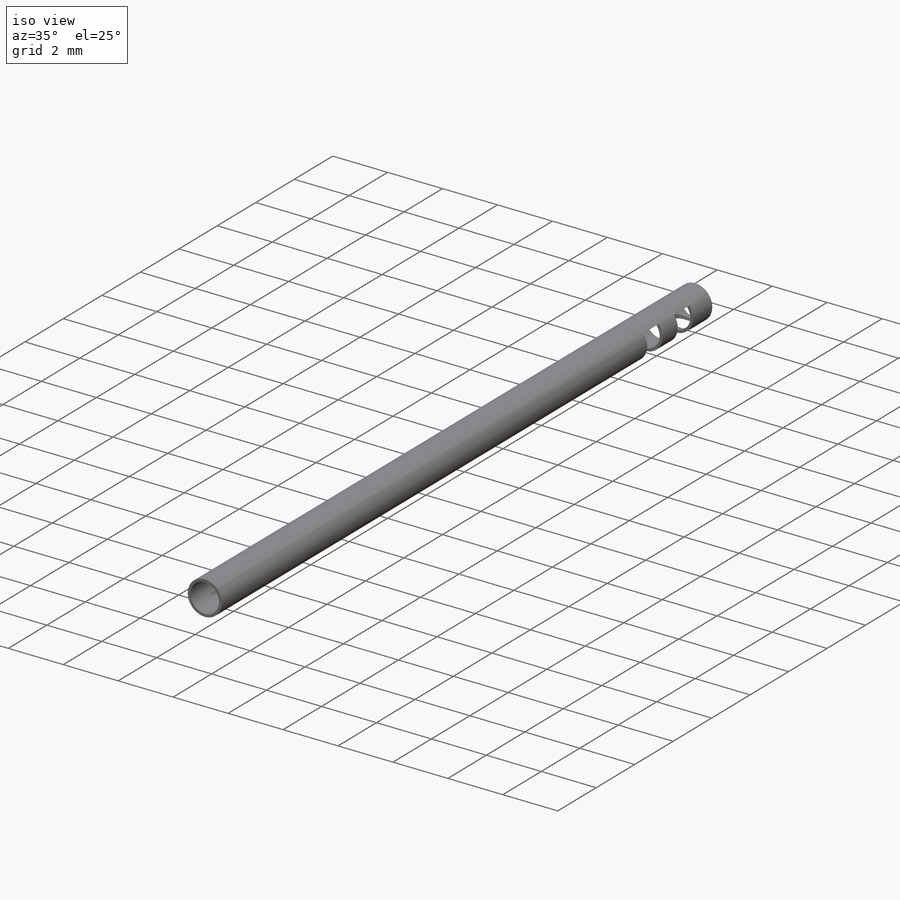
[diagram: iso view]
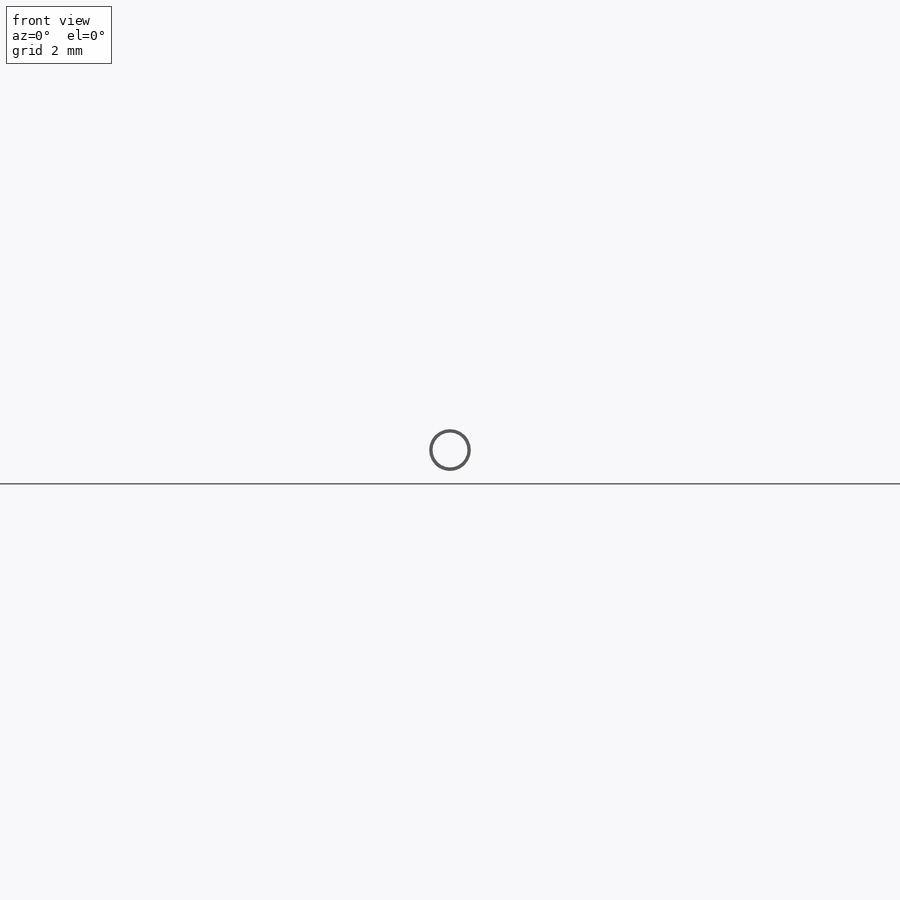
[diagram: front view]
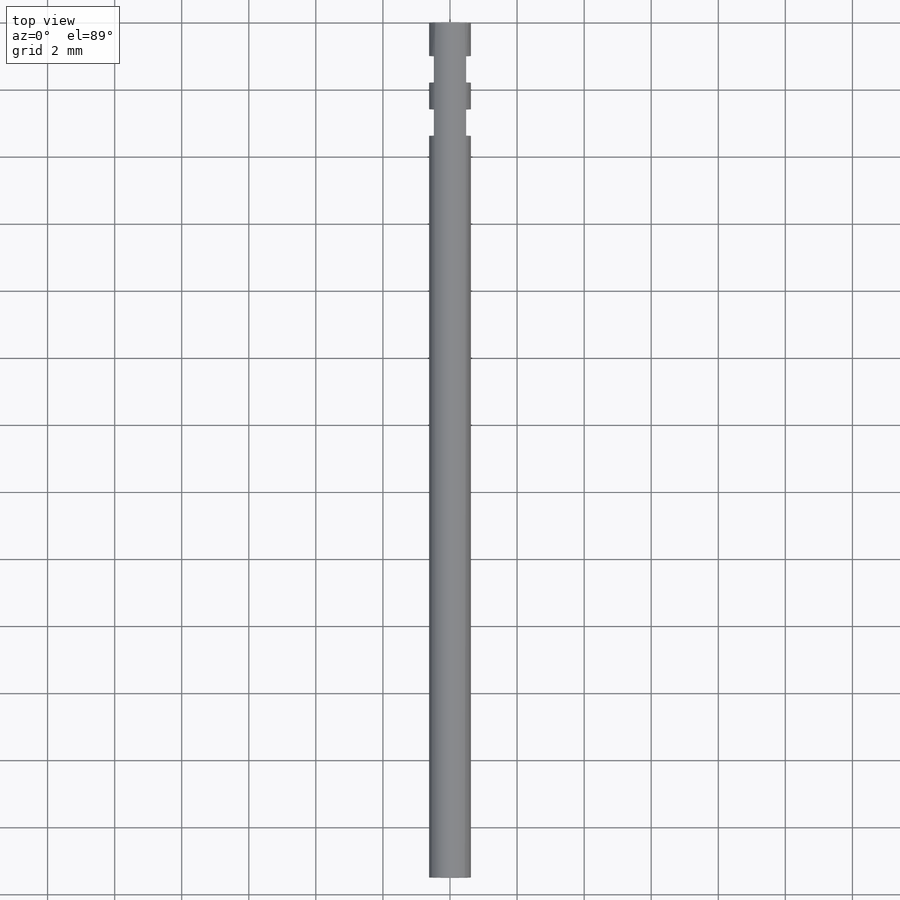
[diagram: top view]
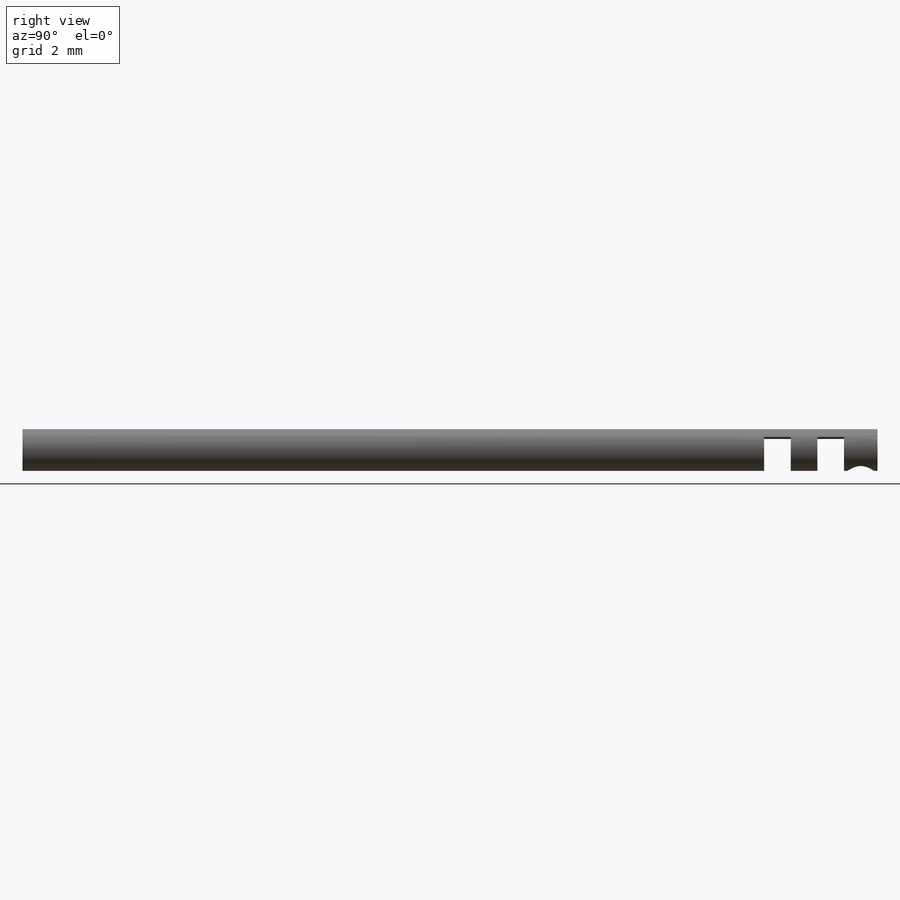
[diagram: right view]
SOLIDWORKS PART (.sldprt)
format: sldprt  version: not decoded by parser v0  size: 239,616 bytes
history: native  units: mm
features: sketch x6, material x1, surface_op x1, cut_extrude x1, mirror x1 (+13 scaffold rows collapsed)
feature tree (23):
  scaffold x13  (default folders/planes/origin — collapsed)
  material  "Material <not specified>"
  sketch  "Sketch2"  dims[D1=0.622mm D2=~0.572313mm]
  surface_op  "Surface-Extrude1"
  sketch  "Sketch3"  dims[D1=~1.041228mm D2=~0.331187mm]
  sketch  "Sketch4"  dims[c1.D1=~1.644287mm c1.D2=~0.766039mm c2.D1=~0.715718mm c2.D2=~1.655196mm c3.D1=~0.548815mm c3.D2=~1.655196mm c4.D1=~0.79375mm c4.D2=~0.79375mm c4.D3=~0.79375mm c4.D4=1.0152mm c4.D5=1.0mm c4.D6=~0.79375mm]
  sketch  "Sketch4<3>"  dims[D1=~0.101386mm]
  sketch  "Sketch7"  dims[c1.D1=~0.79375mm c2.D1=~2.275451mm c2.D2=0.5mm]
  cut_extrude  "Cut-Extrude1"  Depth=10mm
  mirror  "Mirror2"
  sketch  "Sketch6"  dims[D1=0.2mm]
decode coverage: 7 of 9 modeling features carry decoded parameters
note: ~ marks probable driven/reference dimensions
note: suppression state not decoded; provenance and decode notes live in map.json
